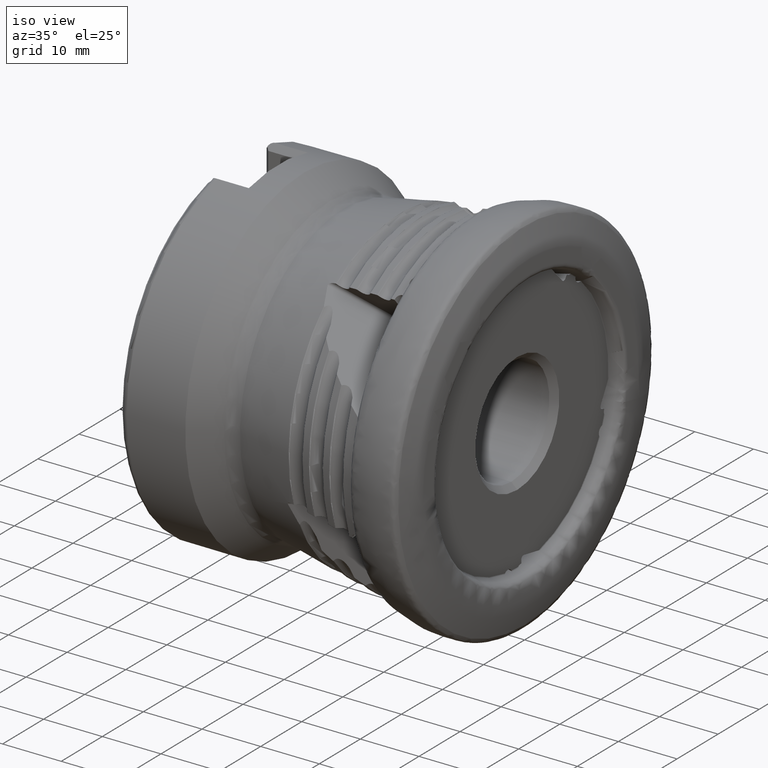
[diagram: clean part render]
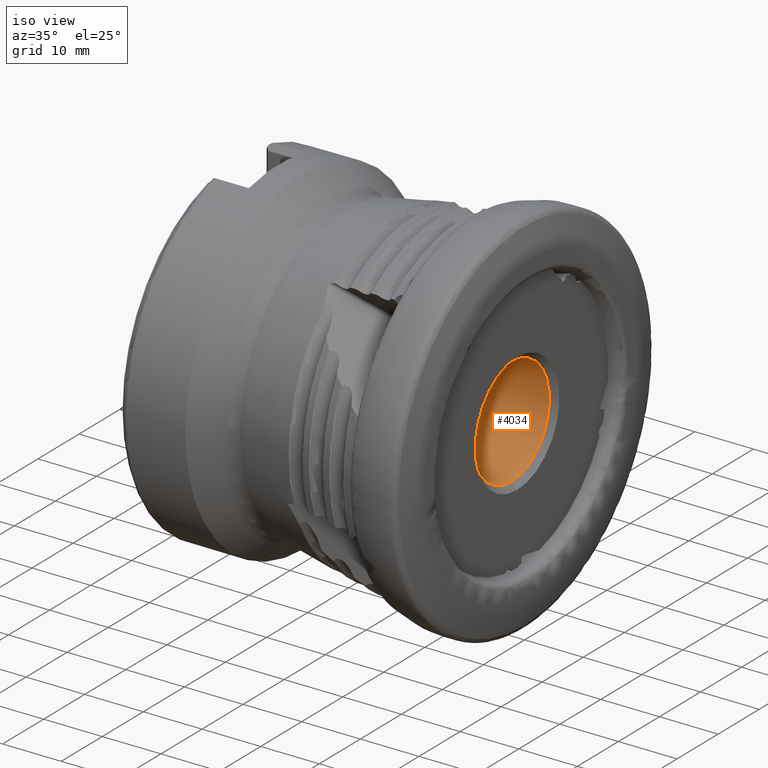
[diagram: same view with one face highlighted and labeled with its STEP entity id]
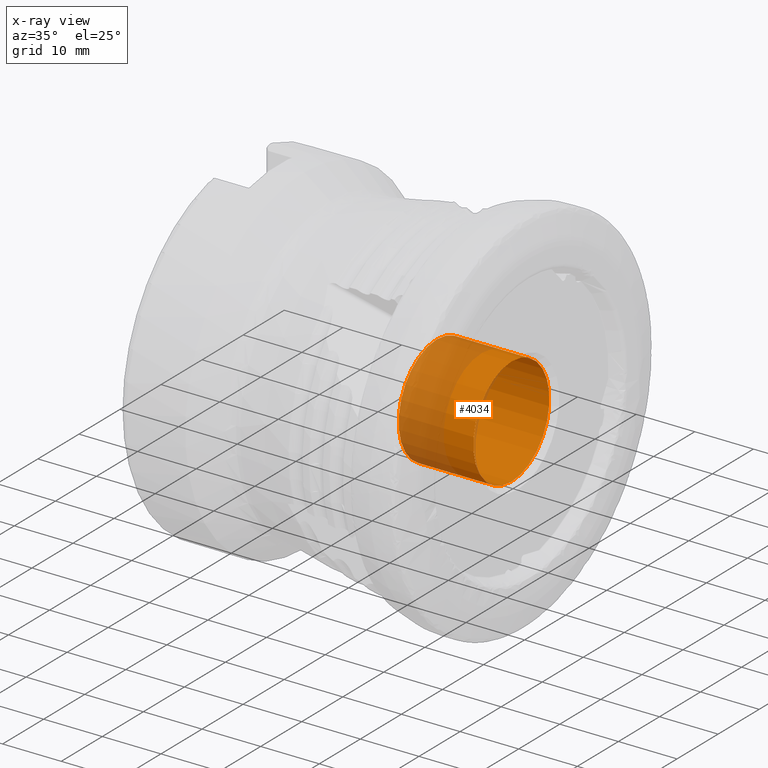
[diagram: x-ray of the same camera — body ghosted, the highlighted face saturated]
A machine part, iso view. The second image highlights one B-rep face of the part: STEP entity #4034.
The next image is the same camera in x-ray: the body ghosted, the highlighted face saturated — about 37% of this face is hidden behind the body in this view.
In plain terms, the highlighted cylindrical surface (bore or boss wall) has radius 9.25 mm, axis along (1, -0, -0).
Its self-contained STEP definition (entity closure, byte-faithful):
#673 = DIRECTION ( 'NONE',  ( 1.000000000000000000, -0.0000000000000000000, -0.0000000000000000000 ) ) ;
#1172 = DIRECTION ( 'NONE',  ( 1.000000000000000000, -0.0000000000000000000, -0.0000000000000000000 ) ) ;
#1924 = DIRECTION ( 'NONE',  ( 0.0000000000000000000, 0.0000000000000000000, -1.000000000000000000 ) ) ;
#2076 = EDGE_CURVE ( 'NONE', #8215, #8215, #6143, .T. ) ;
#2119 = CARTESIAN_POINT ( 'NONE',  ( -15.00000000000000000, 0.0000000000000000000, 0.0000000000000000000 ) ) ;
#2385 = EDGE_CURVE ( 'NONE', #5790, #5790, #2424, .T. ) ;
#2424 = CIRCLE ( 'NONE', #3524, 9.249999999999998200 ) ;
#2629 = AXIS2_PLACEMENT_3D ( 'NONE', #5531, #673, #6352 ) ;
#2965 = DIRECTION ( 'NONE',  ( 0.0000000000000000000, 0.0000000000000000000, -1.000000000000000000 ) ) ;
#3524 = AXIS2_PLACEMENT_3D ( 'NONE', #2119, #7841, #2965 ) ;
#3698 = FACE_OUTER_BOUND ( 'NONE', #8438, .T. ) ;
#4034 = ADVANCED_FACE ( 'NONE', ( #3698, #10215 ), #5611, .F. ) ;
#4692 = AXIS2_PLACEMENT_3D ( 'NONE', #7649, #1172, #1924 ) ;
#5531 = CARTESIAN_POINT ( 'NONE',  ( -2.249999999999998700, 0.0000000000000000000, 0.0000000000000000000 ) ) ;
#5572 = ORIENTED_EDGE ( 'NONE', *, *, #2076, .T. ) ;
#5611 = CYLINDRICAL_SURFACE ( 'NONE', #4692, 9.249999999999998200 ) ;
#5790 = VERTEX_POINT ( 'NONE', #8507 ) ;
#6143 = CIRCLE ( 'NONE', #2629, 9.250000000000000000 ) ;
#6352 = DIRECTION ( 'NONE',  ( 0.0000000000000000000, 0.0000000000000000000, -1.000000000000000000 ) ) ;
#6862 = CARTESIAN_POINT ( 'NONE',  ( -2.249999999999998700, 0.0000000000000000000, -9.250000000000000000 ) ) ;
#7649 = CARTESIAN_POINT ( 'NONE',  ( 0.0000000000000000000, 0.0000000000000000000, 0.0000000000000000000 ) ) ;
#7833 = ORIENTED_EDGE ( 'NONE', *, *, #2385, .F. ) ;
#7841 = DIRECTION ( 'NONE',  ( 1.000000000000000000, -0.0000000000000000000, -0.0000000000000000000 ) ) ;
#8215 = VERTEX_POINT ( 'NONE', #6862 ) ;
#8438 = EDGE_LOOP ( 'NONE', ( #7833 ) ) ;
#8507 = CARTESIAN_POINT ( 'NONE',  ( -15.00000000000000000, 0.0000000000000000000, -9.249999999999998200 ) ) ;
#8889 = EDGE_LOOP ( 'NONE', ( #5572 ) ) ;
#10215 = FACE_OUTER_BOUND ( 'NONE', #8889, .T. ) ;